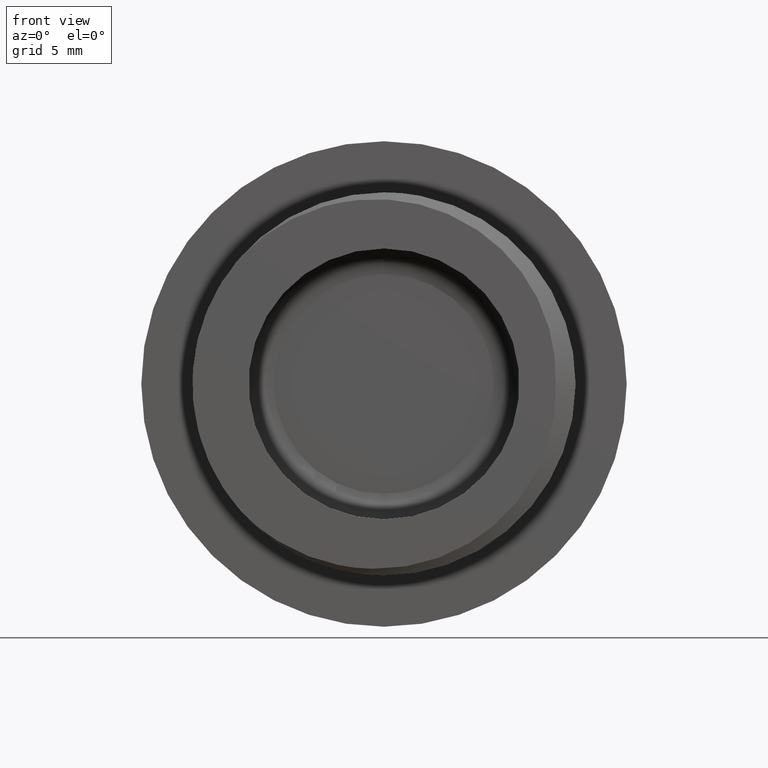
[diagram: clean part render]
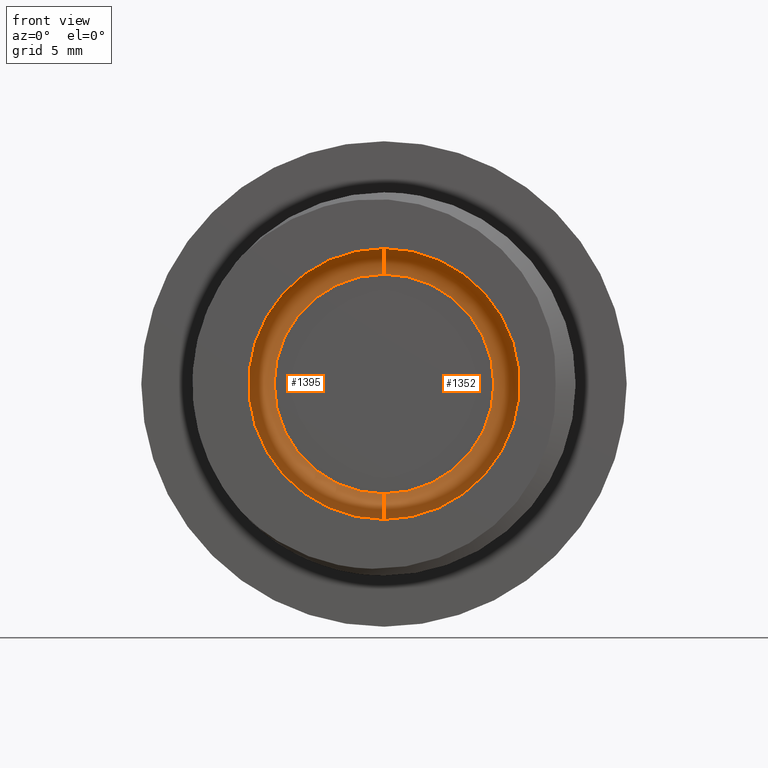
[diagram: same view with one multi-face feature highlighted, each face labeled with its STEP entity id]
A machine part, front view. The highlighted faces form ONE feature: a constant-radius fillet chain: 2 tangent blend faces with common blend radius 1 mm. The faces share edges in the B-rep.
Their STEP definitions:
[1] entity #1352 (Torus):
#15 = VERTEX_POINT ( 'NONE', #58 ) ;
#16 = VERTEX_POINT ( 'NONE', #52 ) ;
#19 = VERTEX_POINT ( 'NONE', #61 ) ;
#25 = VERTEX_POINT ( 'NONE', #59 ) ;
#52 = CARTESIAN_POINT ( 'NONE',  ( 5.878304635907294200E-016, 4.857954256561428400, -4.299999999999998900 ) ) ;
#58 = CARTESIAN_POINT ( 'NONE',  ( 6.490628035480970900E-016, 3.857954256561428400, 5.299999999999998900 ) ) ;
#59 = CARTESIAN_POINT ( 'NONE',  ( 0.0000000000000000000, 3.857954256561428400, -5.299999999999998900 ) ) ;
#61 = CARTESIAN_POINT ( 'NONE',  ( 0.0000000000000000000, 4.857954256561428400, 4.299999999999998900 ) ) ;
#87 = CARTESIAN_POINT ( 'NONE',  ( 0.0000000000000000000, 3.857954256561428400, 0.0000000000000000000 ) ) ;
#90 = DIRECTION ( 'NONE',  ( 0.0000000000000000000, 0.0000000000000000000, 1.000000000000000000 ) ) ;
#92 = FACE_OUTER_BOUND ( 'NONE', #325, .T. ) ;
#93 = DIRECTION ( 'NONE',  ( 0.0000000000000000000, 1.000000000000000000, 0.0000000000000000000 ) ) ;
#143 = ORIENTED_EDGE ( 'NONE', *, *, #1437, .F. ) ;
#147 = ORIENTED_EDGE ( 'NONE', *, *, #1454, .T. ) ;
#161 = CIRCLE ( 'NONE', #162, 4.299999999999998900 ) ;
#162 = AXIS2_PLACEMENT_3D ( 'NONE', #637, #605, #610 ) ;
#199 = CIRCLE ( 'NONE', #201, 1.000000000000000000 ) ;
#201 = AXIS2_PLACEMENT_3D ( 'NONE', #243, #244, #245 ) ;
#206 = CIRCLE ( 'NONE', #1502, 1.000000000000000000 ) ;
#211 = AXIS2_PLACEMENT_3D ( 'NONE', #387, #420, #362 ) ;
#215 = CIRCLE ( 'NONE', #211, 5.299999999999998900 ) ;
#243 = CARTESIAN_POINT ( 'NONE',  ( 5.265981236333617500E-016, 3.857954256561428400, -4.299999999999998900 ) ) ;
#244 = DIRECTION ( 'NONE',  ( 1.000000000000000000, -0.0000000000000000000, 1.224646799147353200E-016 ) ) ;
#245 = DIRECTION ( 'NONE',  ( 1.224646799147353500E-016, 0.0000000000000000000, -1.000000000000000000 ) ) ;
#310 = TOROIDAL_SURFACE ( 'NONE', #318, 4.299999999999998900, 1.000000000000000000 ) ;
#318 = AXIS2_PLACEMENT_3D ( 'NONE', #87, #93, #90 ) ;
#325 = EDGE_LOOP ( 'NONE', ( #1272, #1304, #147, #143 ) ) ;
#362 = DIRECTION ( 'NONE',  ( 0.0000000000000000000, 0.0000000000000000000, 1.000000000000000000 ) ) ;
#387 = CARTESIAN_POINT ( 'NONE',  ( 0.0000000000000000000, 3.857954256561428400, 0.0000000000000000000 ) ) ;
#420 = DIRECTION ( 'NONE',  ( 0.0000000000000000000, 1.000000000000000000, 0.0000000000000000000 ) ) ;
#605 = DIRECTION ( 'NONE',  ( -0.0000000000000000000, -1.000000000000000000, -0.0000000000000000000 ) ) ;
#610 = DIRECTION ( 'NONE',  ( 0.0000000000000000000, 0.0000000000000000000, 1.000000000000000000 ) ) ;
#637 = CARTESIAN_POINT ( 'NONE',  ( 0.0000000000000000000, 4.857954256561428400, 0.0000000000000000000 ) ) ;
#683 = CARTESIAN_POINT ( 'NONE',  ( 0.0000000000000000000, 3.857954256561428400, 4.299999999999998900 ) ) ;
#684 = DIRECTION ( 'NONE',  ( 0.0000000000000000000, 0.0000000000000000000, 1.000000000000000000 ) ) ;
#689 = DIRECTION ( 'NONE',  ( -1.000000000000000000, 0.0000000000000000000, 0.0000000000000000000 ) ) ;
#1272 = ORIENTED_EDGE ( 'NONE', *, *, #1407, .F. ) ;
#1304 = ORIENTED_EDGE ( 'NONE', *, *, #1419, .F. ) ;
#1352 = ADVANCED_FACE ( 'NONE', ( #92 ), #310, .F. ) ;
#1407 = EDGE_CURVE ( 'NONE', #25, #16, #199, .T. ) ;
#1419 = EDGE_CURVE ( 'NONE', #15, #25, #215, .T. ) ;
#1437 = EDGE_CURVE ( 'NONE', #16, #19, #161, .T. ) ;
#1454 = EDGE_CURVE ( 'NONE', #15, #19, #206, .T. ) ;
#1502 = AXIS2_PLACEMENT_3D ( 'NONE', #683, #689, #684 ) ;
[2] entity #1395 (Torus):
#15 = VERTEX_POINT ( 'NONE', #58 ) ;
#16 = VERTEX_POINT ( 'NONE', #52 ) ;
#19 = VERTEX_POINT ( 'NONE', #61 ) ;
#25 = VERTEX_POINT ( 'NONE', #59 ) ;
#52 = CARTESIAN_POINT ( 'NONE',  ( 5.878304635907294200E-016, 4.857954256561428400, -4.299999999999998900 ) ) ;
#58 = CARTESIAN_POINT ( 'NONE',  ( 6.490628035480970900E-016, 3.857954256561428400, 5.299999999999998900 ) ) ;
#59 = CARTESIAN_POINT ( 'NONE',  ( 0.0000000000000000000, 3.857954256561428400, -5.299999999999998900 ) ) ;
#61 = CARTESIAN_POINT ( 'NONE',  ( 0.0000000000000000000, 4.857954256561428400, 4.299999999999998900 ) ) ;
#178 = CIRCLE ( 'NONE', #179, 5.299999999999998900 ) ;
#179 = AXIS2_PLACEMENT_3D ( 'NONE', #1483, #1306, #1309 ) ;
#199 = CIRCLE ( 'NONE', #201, 1.000000000000000000 ) ;
#201 = AXIS2_PLACEMENT_3D ( 'NONE', #243, #244, #245 ) ;
#206 = CIRCLE ( 'NONE', #1502, 1.000000000000000000 ) ;
#207 = CIRCLE ( 'NONE', #208, 4.299999999999998900 ) ;
#208 = AXIS2_PLACEMENT_3D ( 'NONE', #437, #382, #438 ) ;
#243 = CARTESIAN_POINT ( 'NONE',  ( 5.265981236333617500E-016, 3.857954256561428400, -4.299999999999998900 ) ) ;
#244 = DIRECTION ( 'NONE',  ( 1.000000000000000000, -0.0000000000000000000, 1.224646799147353200E-016 ) ) ;
#245 = DIRECTION ( 'NONE',  ( 1.224646799147353500E-016, 0.0000000000000000000, -1.000000000000000000 ) ) ;
#340 = EDGE_LOOP ( 'NONE', ( #427, #375, #423, #355 ) ) ;
#355 = ORIENTED_EDGE ( 'NONE', *, *, #1454, .F. ) ;
#375 = ORIENTED_EDGE ( 'NONE', *, *, #1407, .T. ) ;
#382 = DIRECTION ( 'NONE',  ( -0.0000000000000000000, -1.000000000000000000, -0.0000000000000000000 ) ) ;
#423 = ORIENTED_EDGE ( 'NONE', *, *, #1423, .F. ) ;
#427 = ORIENTED_EDGE ( 'NONE', *, *, #1382, .F. ) ;
#437 = CARTESIAN_POINT ( 'NONE',  ( 0.0000000000000000000, 4.857954256561428400, 0.0000000000000000000 ) ) ;
#438 = DIRECTION ( 'NONE',  ( 0.0000000000000000000, 0.0000000000000000000, 1.000000000000000000 ) ) ;
#683 = CARTESIAN_POINT ( 'NONE',  ( 0.0000000000000000000, 3.857954256561428400, 4.299999999999998900 ) ) ;
#684 = DIRECTION ( 'NONE',  ( 0.0000000000000000000, 0.0000000000000000000, 1.000000000000000000 ) ) ;
#689 = DIRECTION ( 'NONE',  ( -1.000000000000000000, 0.0000000000000000000, 0.0000000000000000000 ) ) ;
#1306 = DIRECTION ( 'NONE',  ( 0.0000000000000000000, 1.000000000000000000, 0.0000000000000000000 ) ) ;
#1309 = DIRECTION ( 'NONE',  ( 0.0000000000000000000, 0.0000000000000000000, 1.000000000000000000 ) ) ;
#1354 = FACE_OUTER_BOUND ( 'NONE', #340, .T. ) ;
#1359 = CARTESIAN_POINT ( 'NONE',  ( 0.0000000000000000000, 3.857954256561428400, 0.0000000000000000000 ) ) ;
#1360 = DIRECTION ( 'NONE',  ( 0.0000000000000000000, 0.0000000000000000000, 1.000000000000000000 ) ) ;
#1363 = DIRECTION ( 'NONE',  ( 0.0000000000000000000, 1.000000000000000000, 0.0000000000000000000 ) ) ;
#1382 = EDGE_CURVE ( 'NONE', #25, #15, #178, .T. ) ;
#1395 = ADVANCED_FACE ( 'NONE', ( #1354 ), #1488, .F. ) ;
#1407 = EDGE_CURVE ( 'NONE', #25, #16, #199, .T. ) ;
#1423 = EDGE_CURVE ( 'NONE', #19, #16, #207, .T. ) ;
#1454 = EDGE_CURVE ( 'NONE', #15, #19, #206, .T. ) ;
#1483 = CARTESIAN_POINT ( 'NONE',  ( 0.0000000000000000000, 3.857954256561428400, 0.0000000000000000000 ) ) ;
#1488 = TOROIDAL_SURFACE ( 'NONE', #1490, 4.299999999999998900, 1.000000000000000000 ) ;
#1490 = AXIS2_PLACEMENT_3D ( 'NONE', #1359, #1363, #1360 ) ;
#1502 = AXIS2_PLACEMENT_3D ( 'NONE', #683, #689, #684 ) ;